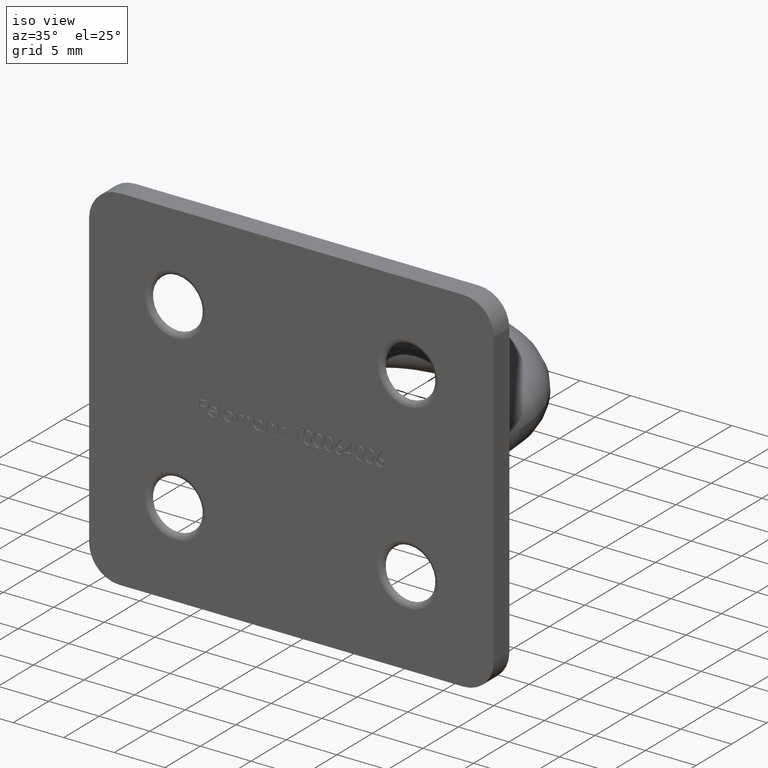
[diagram: clean part render]
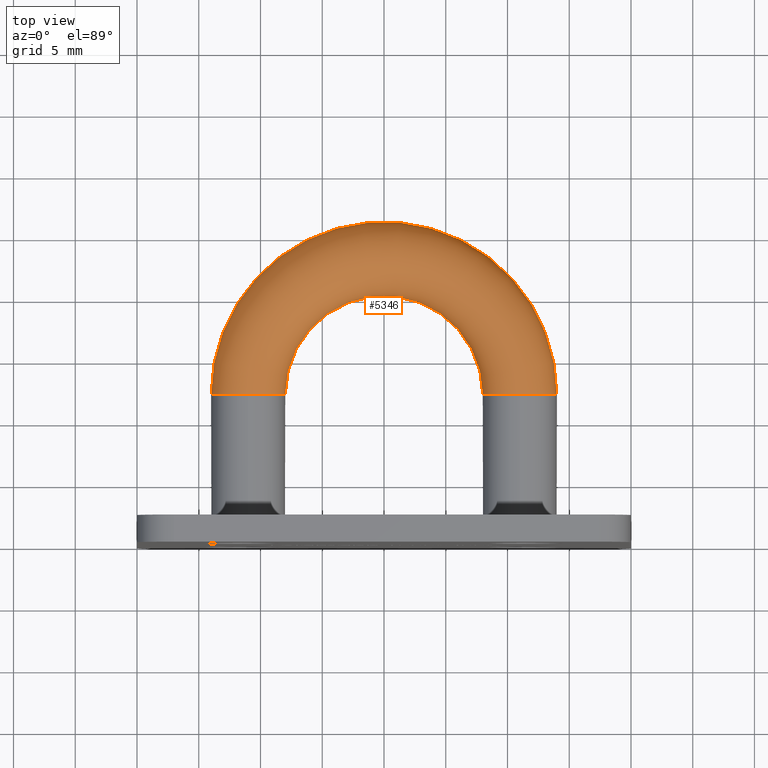
[diagram: tour spotlight — one face highlighted and labeled with its STEP entity id]
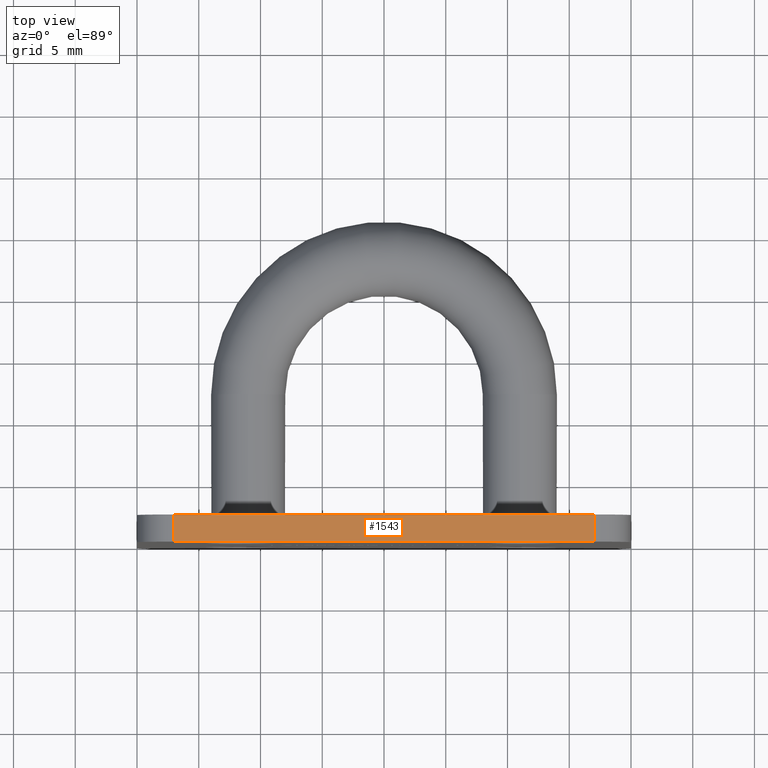
[diagram: tour spotlight — one face highlighted and labeled with its STEP entity id]
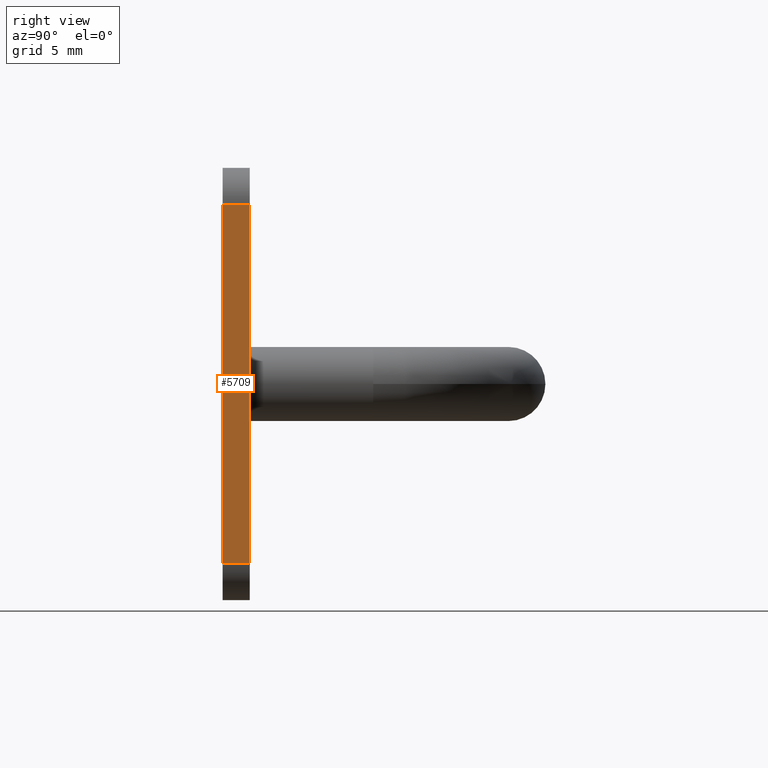
[diagram: tour spotlight — one face highlighted and labeled with its STEP entity id]
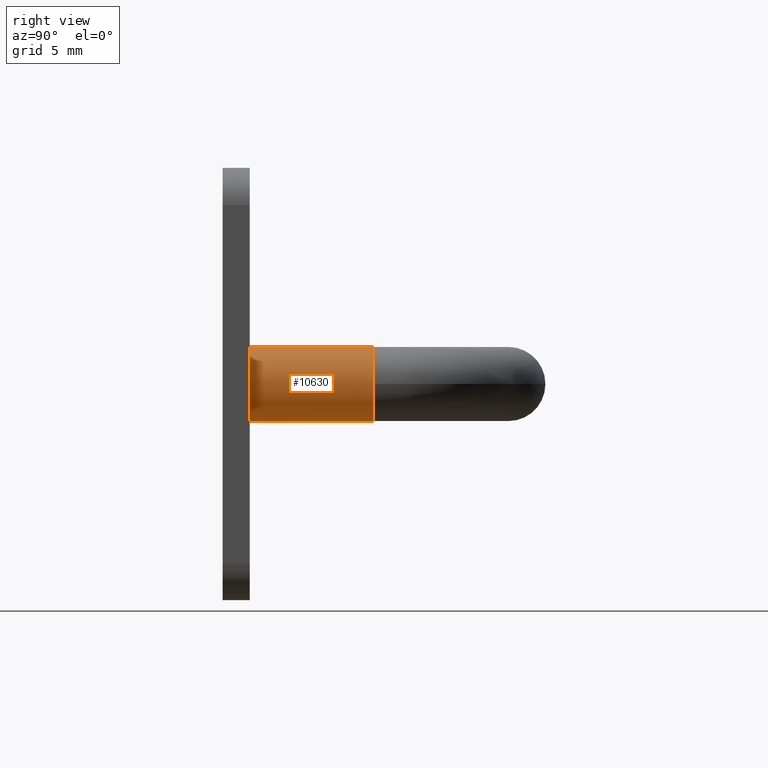
[diagram: tour spotlight — one face highlighted and labeled with its STEP entity id]
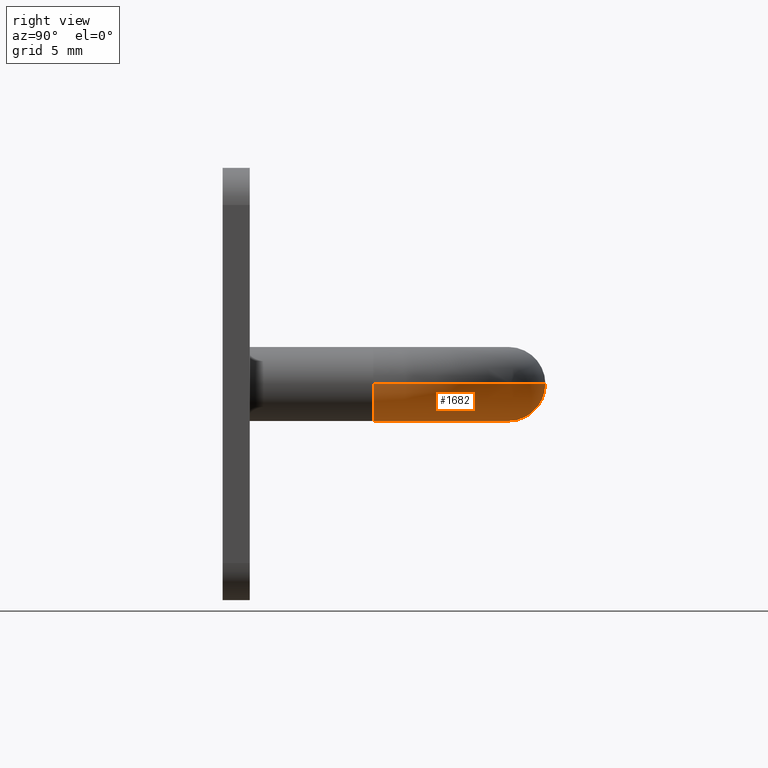
[diagram: tour spotlight — one face highlighted and labeled with its STEP entity id]
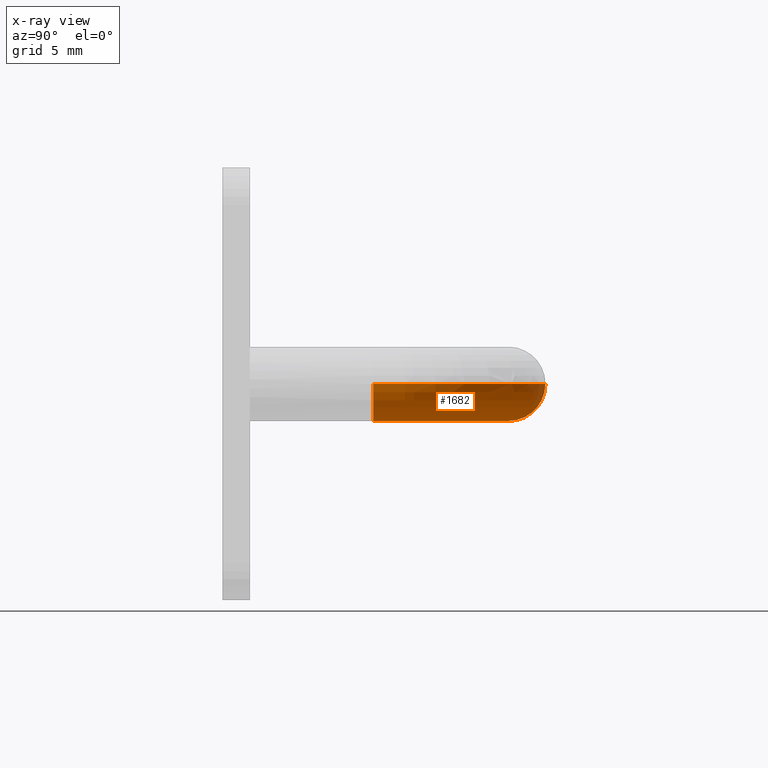
[diagram: x-ray of the same camera — body ghosted, this tour face saturated]
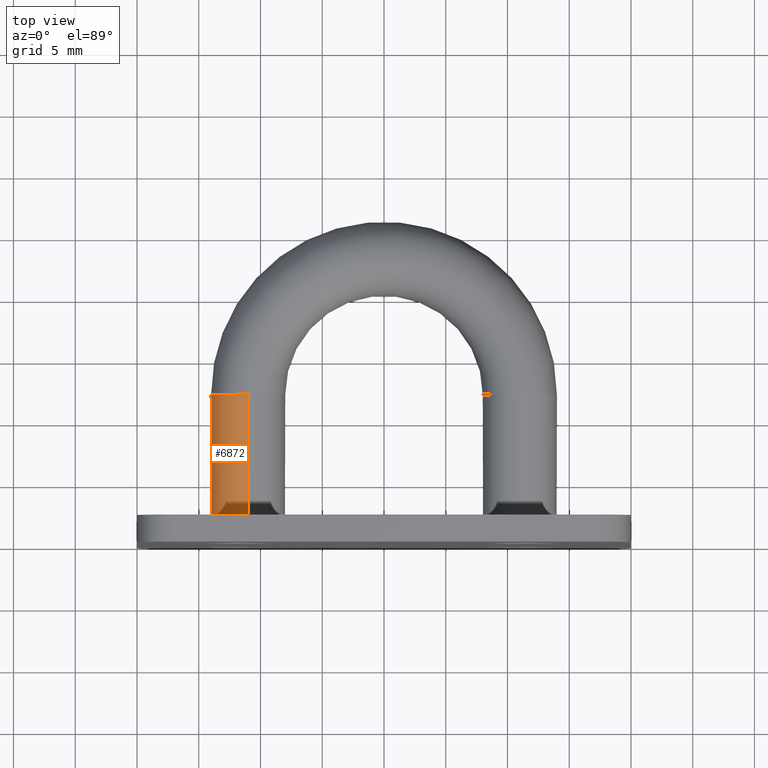
[diagram: tour spotlight — one face highlighted and labeled with its STEP entity id]
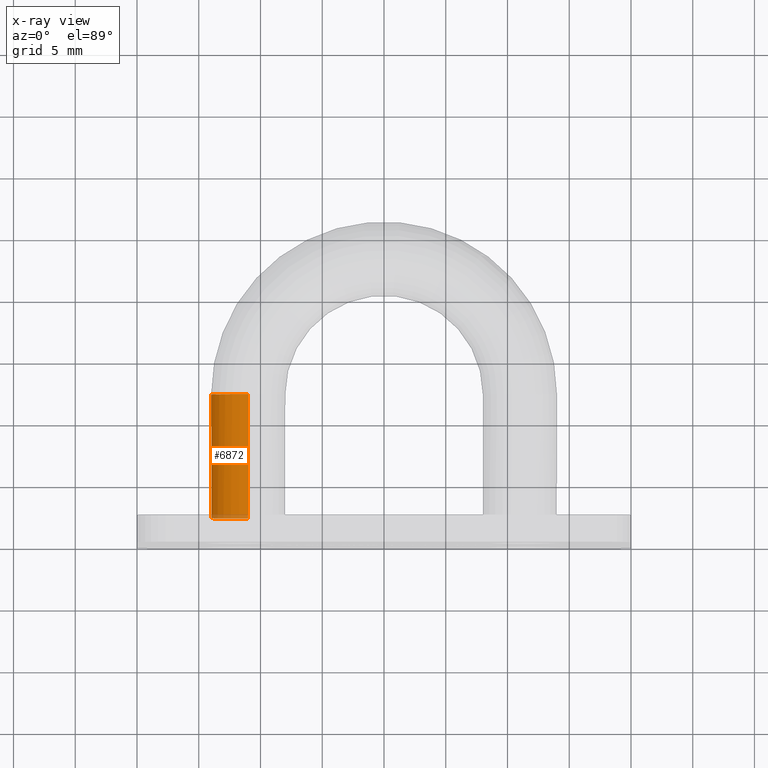
[diagram: x-ray of the same camera — body ghosted, this tour face saturated]
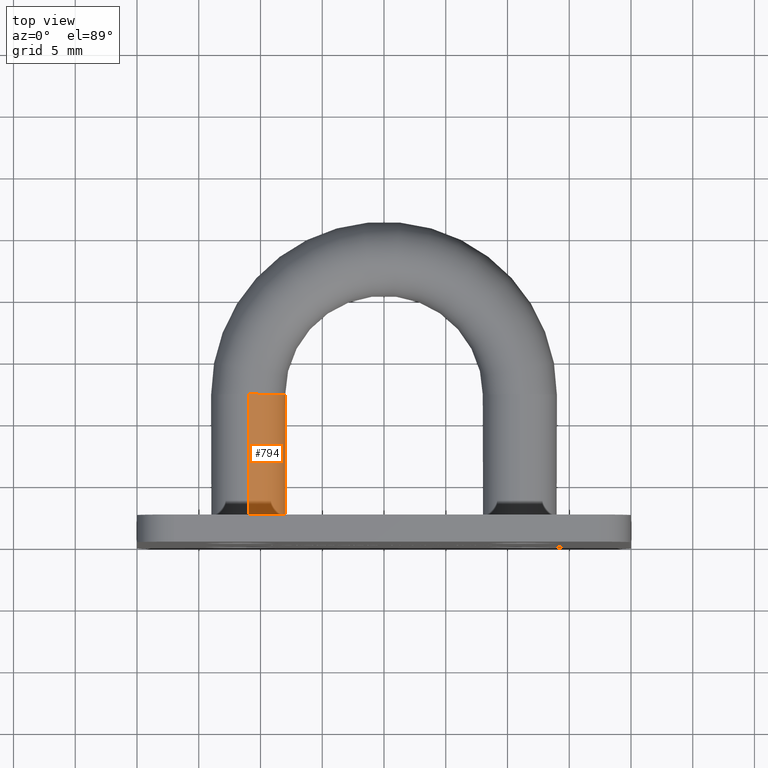
[diagram: tour spotlight — one face highlighted and labeled with its STEP entity id]
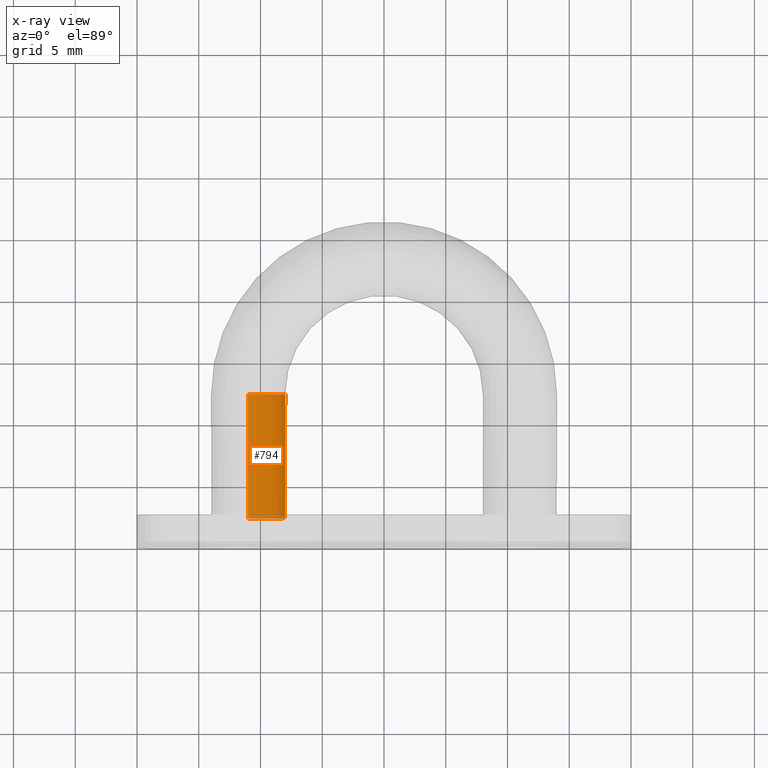
[diagram: x-ray of the same camera — body ghosted, this tour face saturated]
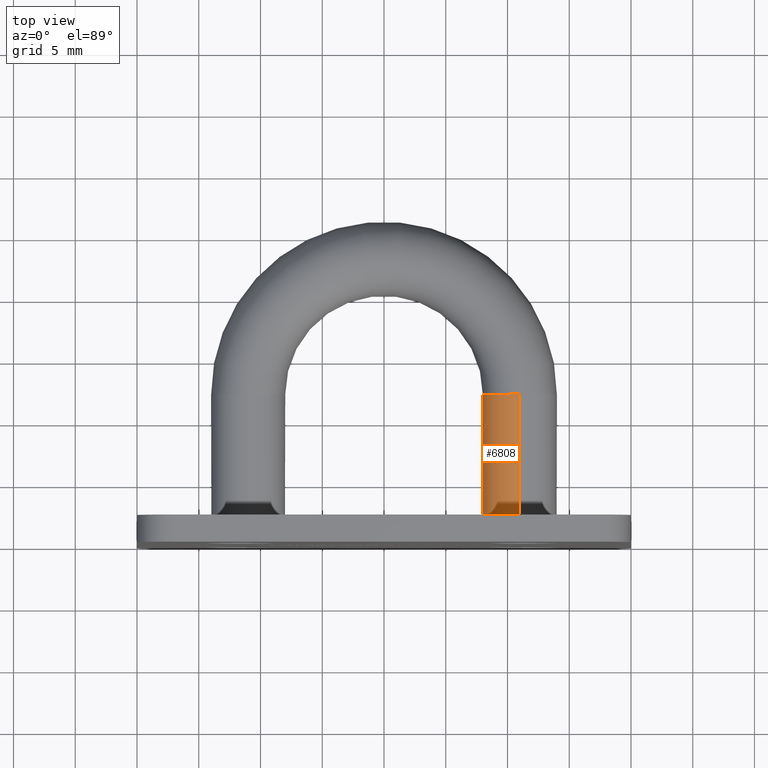
[diagram: tour spotlight — one face highlighted and labeled with its STEP entity id]
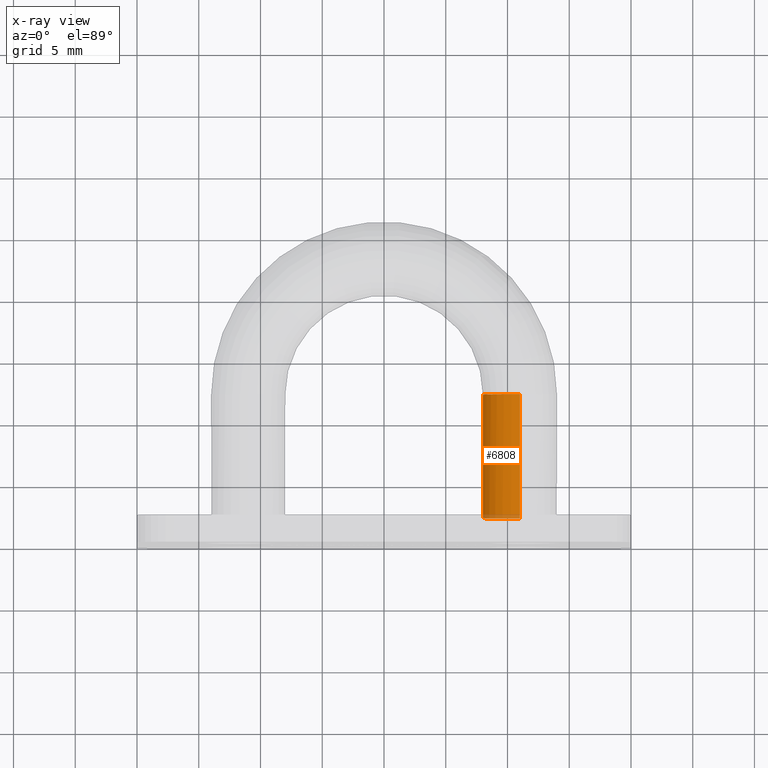
[diagram: x-ray of the same camera — body ghosted, this tour face saturated]
A machine part: a face-by-face anatomy tour. The part has 250 B-rep faces; the first image is the clean iso view, then the 8 largest visible faces are spotlighted one at a time (largest first), each with its STEP entity span.

Face 1 — top view, entity #5346. In plain terms, the highlighted toroidal blend (fillet) surface has major radius 11 mm and minor (blend) radius 3 mm.
Definition (entity closure, byte-faithful):
#213 = DIRECTION ( 'NONE',  ( 0.0000000000000000000, 0.0000000000000000000, -1.000000000000000000 ) ) ;
#235 = DIRECTION ( 'NONE',  ( -0.0000000000000000000, -0.0000000000000000000, -1.000000000000000000 ) ) ;
#316 = VERTEX_POINT ( 'NONE', #789 ) ;
#777 = EDGE_CURVE ( 'NONE', #3674, #10600, #4147, .T. ) ;
#789 = CARTESIAN_POINT ( 'NONE',  ( 8.000000000000000000, 12.20000000000000100, 3.673940397442058900E-016 ) ) ;
#1513 = CIRCLE ( 'NONE', #9219, 8.000000000000000000 ) ;
#2386 = CARTESIAN_POINT ( 'NONE',  ( 0.0000000000000000000, 12.19999999999999900, 0.0000000000000000000 ) ) ;
#2477 = AXIS2_PLACEMENT_3D ( 'NONE', #5826, #12675, #213 ) ;
#3196 = CARTESIAN_POINT ( 'NONE',  ( -8.000000000000000000, 12.19999999999999900, 3.673940397442058900E-016 ) ) ;
#3433 = AXIS2_PLACEMENT_3D ( 'NONE', #8269, #4903, #10597 ) ;
#3674 = VERTEX_POINT ( 'NONE', #4309 ) ;
#3719 = AXIS2_PLACEMENT_3D ( 'NONE', #9414, #6094, #13930 ) ;
#3807 = AXIS2_PLACEMENT_3D ( 'NONE', #5290, #13127, #7544 ) ;
#4134 = ORIENTED_EDGE ( 'NONE', *, *, #12502, .F. ) ;
#4147 = CIRCLE ( 'NONE', #2477, 2.999999999999999100 ) ;
#4193 = CARTESIAN_POINT ( 'NONE',  ( -11.00000000000000000, 12.19999999999999900, 2.999999999999999100 ) ) ;
#4198 = EDGE_CURVE ( 'NONE', #13438, #9780, #13328, .T. ) ;
#4309 = CARTESIAN_POINT ( 'NONE',  ( 11.00000000000000000, 12.20000000000000100, 2.999999999999999100 ) ) ;
#4454 = EDGE_CURVE ( 'NONE', #316, #3674, #7195, .T. ) ;
#4500 = CIRCLE ( 'NONE', #3433, 13.99999999999999800 ) ;
#4553 = AXIS2_PLACEMENT_3D ( 'NONE', #2386, #235, #10197 ) ;
#4710 = VERTEX_POINT ( 'NONE', #7924 ) ;
#4737 = EDGE_LOOP ( 'NONE', ( #10674, #4134, #10866, #7109, #11519, #6777 ) ) ;
#4903 = DIRECTION ( 'NONE',  ( -0.0000000000000000000, -0.0000000000000000000, -1.000000000000000000 ) ) ;
#5290 = CARTESIAN_POINT ( 'NONE',  ( -11.00000000000000000, 12.19999999999999900, 0.0000000000000000000 ) ) ;
#5346 = ADVANCED_FACE ( 'NONE', ( #12786 ), #7871, .T. ) ;
#5704 = CARTESIAN_POINT ( 'NONE',  ( 13.99999999999999800, 12.20000000000000100, 0.0000000000000000000 ) ) ;
#5826 = CARTESIAN_POINT ( 'NONE',  ( 11.00000000000000000, 12.20000000000000100, 0.0000000000000000000 ) ) ;
#6094 = DIRECTION ( 'NONE',  ( -1.224646799147353200E-016, 1.000000000000000000, 0.0000000000000000000 ) ) ;
#6777 = ORIENTED_EDGE ( 'NONE', *, *, #777, .T. ) ;
#7109 = ORIENTED_EDGE ( 'NONE', *, *, #11915, .T. ) ;
#7195 = CIRCLE ( 'NONE', #3719, 2.999999999999999100 ) ;
#7299 = CIRCLE ( 'NONE', #10449, 2.999999999999999100 ) ;
#7544 = DIRECTION ( 'NONE',  ( 0.0000000000000000000, 0.0000000000000000000, -1.000000000000000000 ) ) ;
#7871 = TOROIDAL_SURFACE ( 'NONE', #4553, 11.00000000000000000, 2.999999999999999100 ) ;
#7924 = CARTESIAN_POINT ( 'NONE',  ( -13.99999999999999800, 12.19999999999999900, 0.0000000000000000000 ) ) ;
#8124 = DIRECTION ( 'NONE',  ( 0.0000000000000000000, 0.0000000000000000000, -1.000000000000000000 ) ) ;
#8181 = CARTESIAN_POINT ( 'NONE',  ( -11.00000000000000000, 12.19999999999999900, 0.0000000000000000000 ) ) ;
#8269 = CARTESIAN_POINT ( 'NONE',  ( 0.0000000000000000000, 12.19999999999999900, 0.0000000000000000000 ) ) ;
#8973 = DIRECTION ( 'NONE',  ( -1.000000000000000000, 0.0000000000000000000, 0.0000000000000000000 ) ) ;
#9219 = AXIS2_PLACEMENT_3D ( 'NONE', #12361, #10160, #8973 ) ;
#9414 = CARTESIAN_POINT ( 'NONE',  ( 11.00000000000000000, 12.20000000000000100, 0.0000000000000000000 ) ) ;
#9780 = VERTEX_POINT ( 'NONE', #4193 ) ;
#10160 = DIRECTION ( 'NONE',  ( -0.0000000000000000000, -0.0000000000000000000, -1.000000000000000000 ) ) ;
#10197 = DIRECTION ( 'NONE',  ( -1.000000000000000000, 0.0000000000000000000, 0.0000000000000000000 ) ) ;
#10449 = AXIS2_PLACEMENT_3D ( 'NONE', #8181, #12536, #8124 ) ;
#10597 = DIRECTION ( 'NONE',  ( -1.000000000000000000, 0.0000000000000000000, 0.0000000000000000000 ) ) ;
#10600 = VERTEX_POINT ( 'NONE', #5704 ) ;
#10674 = ORIENTED_EDGE ( 'NONE', *, *, #11633, .F. ) ;
#10866 = ORIENTED_EDGE ( 'NONE', *, *, #4198, .F. ) ;
#11519 = ORIENTED_EDGE ( 'NONE', *, *, #4454, .T. ) ;
#11633 = EDGE_CURVE ( 'NONE', #4710, #10600, #4500, .T. ) ;
#11915 = EDGE_CURVE ( 'NONE', #13438, #316, #1513, .T. ) ;
#12361 = CARTESIAN_POINT ( 'NONE',  ( 0.0000000000000000000, 12.19999999999999900, 3.673940397442058900E-016 ) ) ;
#12502 = EDGE_CURVE ( 'NONE', #9780, #4710, #7299, .T. ) ;
#12536 = DIRECTION ( 'NONE',  ( 0.0000000000000000000, -1.000000000000000000, 0.0000000000000000000 ) ) ;
#12675 = DIRECTION ( 'NONE',  ( -1.224646799147353200E-016, 1.000000000000000000, 0.0000000000000000000 ) ) ;
#12786 = FACE_OUTER_BOUND ( 'NONE', #4737, .T. ) ;
#13127 = DIRECTION ( 'NONE',  ( 0.0000000000000000000, -1.000000000000000000, 0.0000000000000000000 ) ) ;
#13328 = CIRCLE ( 'NONE', #3807, 2.999999999999999100 ) ;
#13438 = VERTEX_POINT ( 'NONE', #3196 ) ;
#13930 = DIRECTION ( 'NONE',  ( 0.0000000000000000000, 0.0000000000000000000, -1.000000000000000000 ) ) ;

Face 2 — top view, entity #1543. In plain terms, the highlighted planar face has unit normal (-0, 0, -1).
Definition (entity closure, byte-faithful):
#126 = FACE_OUTER_BOUND ( 'NONE', #6841, .T. ) ;
#472 = ORIENTED_EDGE ( 'NONE', *, *, #13017, .F. ) ;
#1021 = VECTOR ( 'NONE', #13236, 1000.000000000000000 ) ;
#1067 = AXIS2_PLACEMENT_3D ( 'NONE', #6037, #13885, #7105 ) ;
#1543 = ADVANCED_FACE ( 'NONE', ( #126 ), #2711, .F. ) ;
#1545 = CARTESIAN_POINT ( 'NONE',  ( 16.99999999999999600, 2.200000000000000200, 17.50000000000000000 ) ) ;
#2084 = LINE ( 'NONE', #10923, #1021 ) ;
#2206 = EDGE_CURVE ( 'NONE', #14180, #8780, #6234, .T. ) ;
#2583 = DIRECTION ( 'NONE',  ( -0.0000000000000000000, 1.000000000000000000, -0.0000000000000000000 ) ) ;
#2711 = PLANE ( 'NONE',  #1067 ) ;
#2809 = VERTEX_POINT ( 'NONE', #5242 ) ;
#2855 = DIRECTION ( 'NONE',  ( 1.000000000000000000, -0.0000000000000000000, -8.673617379884036700E-017 ) ) ;
#3677 = VERTEX_POINT ( 'NONE', #10258 ) ;
#4326 = CARTESIAN_POINT ( 'NONE',  ( 19.99999999999999600, 2.200000000000000200, 17.50000000000000000 ) ) ;
#5242 = CARTESIAN_POINT ( 'NONE',  ( -17.00000000000000000, 2.200000000000000200, 17.50000000000000400 ) ) ;
#6037 = CARTESIAN_POINT ( 'NONE',  ( 19.99999999999999600, 2.200000000000000200, 17.50000000000000000 ) ) ;
#6234 = LINE ( 'NONE', #1545, #8671 ) ;
#6841 = EDGE_LOOP ( 'NONE', ( #472, #8459, #11005, #11823 ) ) ;
#7105 = DIRECTION ( 'NONE',  ( -1.000000000000000000, 0.0000000000000000000, 8.673617379884036700E-017 ) ) ;
#8319 = CARTESIAN_POINT ( 'NONE',  ( 19.99999999999999600, 0.0000000000000000000, 17.50000000000000000 ) ) ;
#8459 = ORIENTED_EDGE ( 'NONE', *, *, #9851, .T. ) ;
#8671 = VECTOR ( 'NONE', #2583, 1000.000000000000000 ) ;
#8741 = EDGE_CURVE ( 'NONE', #3677, #14180, #12595, .T. ) ;
#8780 = VERTEX_POINT ( 'NONE', #12790 ) ;
#9851 = EDGE_CURVE ( 'NONE', #2809, #3677, #2084, .T. ) ;
#10258 = CARTESIAN_POINT ( 'NONE',  ( -17.00000000000000000, 0.0000000000000000000, 17.50000000000000400 ) ) ;
#10657 = VECTOR ( 'NONE', #2855, 1000.000000000000000 ) ;
#10752 = VECTOR ( 'NONE', #14385, 1000.000000000000000 ) ;
#10923 = CARTESIAN_POINT ( 'NONE',  ( -17.00000000000000000, 2.200000000000000200, 17.50000000000000400 ) ) ;
#11005 = ORIENTED_EDGE ( 'NONE', *, *, #8741, .T. ) ;
#11108 = CARTESIAN_POINT ( 'NONE',  ( 16.99999999999999600, 0.0000000000000000000, 17.50000000000000000 ) ) ;
#11823 = ORIENTED_EDGE ( 'NONE', *, *, #2206, .T. ) ;
#12595 = LINE ( 'NONE', #8319, #10657 ) ;
#12790 = CARTESIAN_POINT ( 'NONE',  ( 16.99999999999999600, 2.200000000000000200, 17.50000000000000000 ) ) ;
#13017 = EDGE_CURVE ( 'NONE', #2809, #8780, #14474, .T. ) ;
#13236 = DIRECTION ( 'NONE',  ( 0.0000000000000000000, -1.000000000000000000, 0.0000000000000000000 ) ) ;
#13885 = DIRECTION ( 'NONE',  ( -8.673617379884036700E-017, 0.0000000000000000000, -1.000000000000000000 ) ) ;
#14180 = VERTEX_POINT ( 'NONE', #11108 ) ;
#14385 = DIRECTION ( 'NONE',  ( 1.000000000000000000, -0.0000000000000000000, -8.673617379884036700E-017 ) ) ;
#14474 = LINE ( 'NONE', #4326, #10752 ) ;

Face 3 — right view, entity #5709. In plain terms, the highlighted planar face has unit normal (-1, 0, 0).
Definition (entity closure, byte-faithful):
#370 = DIRECTION ( 'NONE',  ( -0.0000000000000000000, 1.000000000000000000, -0.0000000000000000000 ) ) ;
#677 = VECTOR ( 'NONE', #12735, 1000.000000000000000 ) ;
#849 = VERTEX_POINT ( 'NONE', #13469 ) ;
#2041 = LINE ( 'NONE', #4914, #4841 ) ;
#2266 = LINE ( 'NONE', #6802, #677 ) ;
#2376 = EDGE_LOOP ( 'NONE', ( #14519, #5518, #12705, #2771 ) ) ;
#2771 = ORIENTED_EDGE ( 'NONE', *, *, #14309, .T. ) ;
#2931 = CARTESIAN_POINT ( 'NONE',  ( 19.99999999999999600, 2.200000000000000200, -14.50000000000000500 ) ) ;
#3169 = DIRECTION ( 'NONE',  ( 0.0000000000000000000, 0.0000000000000000000, 1.000000000000000000 ) ) ;
#3183 = VERTEX_POINT ( 'NONE', #2931 ) ;
#3949 = DIRECTION ( 'NONE',  ( 0.0000000000000000000, -1.000000000000000000, 0.0000000000000000000 ) ) ;
#4841 = VECTOR ( 'NONE', #370, 1000.000000000000000 ) ;
#4914 = CARTESIAN_POINT ( 'NONE',  ( 19.99999999999999600, 2.200000000000000200, -14.50000000000000500 ) ) ;
#4970 = CARTESIAN_POINT ( 'NONE',  ( 19.99999999999999600, 2.200000000000000200, 14.50000000000000200 ) ) ;
#5295 = AXIS2_PLACEMENT_3D ( 'NONE', #6469, #12151, #3169 ) ;
#5518 = ORIENTED_EDGE ( 'NONE', *, *, #12488, .T. ) ;
#5709 = ADVANCED_FACE ( 'NONE', ( #6458 ), #6514, .F. ) ;
#6458 = FACE_OUTER_BOUND ( 'NONE', #2376, .T. ) ;
#6469 = CARTESIAN_POINT ( 'NONE',  ( 19.99999999999999600, 2.200000000000000200, -17.50000000000000400 ) ) ;
#6514 = PLANE ( 'NONE',  #5295 ) ;
#6704 = EDGE_CURVE ( 'NONE', #13199, #849, #2266, .T. ) ;
#6802 = CARTESIAN_POINT ( 'NONE',  ( 19.99999999999999600, 0.0000000000000000000, -17.50000000000000400 ) ) ;
#6804 = CARTESIAN_POINT ( 'NONE',  ( 19.99999999999999600, 0.0000000000000000000, 14.50000000000000200 ) ) ;
#7755 = EDGE_CURVE ( 'NONE', #9241, #3183, #8363, .T. ) ;
#7999 = VECTOR ( 'NONE', #13369, 1000.000000000000000 ) ;
#8363 = LINE ( 'NONE', #14460, #7999 ) ;
#8653 = VECTOR ( 'NONE', #3949, 1000.000000000000000 ) ;
#9241 = VERTEX_POINT ( 'NONE', #10233 ) ;
#10233 = CARTESIAN_POINT ( 'NONE',  ( 19.99999999999999600, 2.200000000000000200, 14.50000000000000200 ) ) ;
#11285 = LINE ( 'NONE', #4970, #8653 ) ;
#12151 = DIRECTION ( 'NONE',  ( -1.000000000000000000, 0.0000000000000000000, 0.0000000000000000000 ) ) ;
#12488 = EDGE_CURVE ( 'NONE', #849, #3183, #2041, .T. ) ;
#12705 = ORIENTED_EDGE ( 'NONE', *, *, #7755, .F. ) ;
#12735 = DIRECTION ( 'NONE',  ( -0.0000000000000000000, -0.0000000000000000000, -1.000000000000000000 ) ) ;
#13199 = VERTEX_POINT ( 'NONE', #6804 ) ;
#13369 = DIRECTION ( 'NONE',  ( -0.0000000000000000000, -0.0000000000000000000, -1.000000000000000000 ) ) ;
#13469 = CARTESIAN_POINT ( 'NONE',  ( 19.99999999999999600, 0.0000000000000000000, -14.50000000000000500 ) ) ;
#14309 = EDGE_CURVE ( 'NONE', #9241, #13199, #11285, .T. ) ;
#14460 = CARTESIAN_POINT ( 'NONE',  ( 19.99999999999999600, 2.200000000000000200, -17.50000000000000400 ) ) ;
#14519 = ORIENTED_EDGE ( 'NONE', *, *, #6704, .T. ) ;

Face 4 — right view, entity #10630. In plain terms, the highlighted cylindrical surface (partial cylindrical patch) has radius 3 mm, axis along (0, -1, 0).
Definition (entity closure, byte-faithful):
#213 = DIRECTION ( 'NONE',  ( 0.0000000000000000000, 0.0000000000000000000, -1.000000000000000000 ) ) ;
#662 = DIRECTION ( 'NONE',  ( -0.0000000000000000000, 1.000000000000000000, -0.0000000000000000000 ) ) ;
#777 = EDGE_CURVE ( 'NONE', #3674, #10600, #4147, .T. ) ;
#2285 = EDGE_CURVE ( 'NONE', #3448, #12396, #2737, .T. ) ;
#2477 = AXIS2_PLACEMENT_3D ( 'NONE', #5826, #12675, #213 ) ;
#2593 = ORIENTED_EDGE ( 'NONE', *, *, #12695, .T. ) ;
#2737 = LINE ( 'NONE', #9559, #9015 ) ;
#2824 = ORIENTED_EDGE ( 'NONE', *, *, #2285, .F. ) ;
#3142 = ORIENTED_EDGE ( 'NONE', *, *, #777, .F. ) ;
#3448 = VERTEX_POINT ( 'NONE', #3597 ) ;
#3597 = CARTESIAN_POINT ( 'NONE',  ( 11.00000000000000000, 12.20000000000000100, -2.999999999999999100 ) ) ;
#3674 = VERTEX_POINT ( 'NONE', #4309 ) ;
#3892 = ORIENTED_EDGE ( 'NONE', *, *, #13526, .F. ) ;
#3910 = AXIS2_PLACEMENT_3D ( 'NONE', #10943, #12085, #4252 ) ;
#4147 = CIRCLE ( 'NONE', #2477, 2.999999999999999100 ) ;
#4252 = DIRECTION ( 'NONE',  ( 0.0000000000000000000, 0.0000000000000000000, -1.000000000000000000 ) ) ;
#4309 = CARTESIAN_POINT ( 'NONE',  ( 11.00000000000000000, 12.20000000000000100, 2.999999999999999100 ) ) ;
#4350 = CARTESIAN_POINT ( 'NONE',  ( 11.00000000000000000, 2.200000000000000600, 2.999999999999999100 ) ) ;
#4483 = LINE ( 'NONE', #11293, #14487 ) ;
#4550 = AXIS2_PLACEMENT_3D ( 'NONE', #5262, #662, #8486 ) ;
#5262 = CARTESIAN_POINT ( 'NONE',  ( 11.00000000000000000, 2.200000000000000600, 0.0000000000000000000 ) ) ;
#5404 = CIRCLE ( 'NONE', #4550, 2.999999999999999100 ) ;
#5704 = CARTESIAN_POINT ( 'NONE',  ( 13.99999999999999800, 12.20000000000000100, 0.0000000000000000000 ) ) ;
#5826 = CARTESIAN_POINT ( 'NONE',  ( 11.00000000000000000, 12.20000000000000100, 0.0000000000000000000 ) ) ;
#6217 = CIRCLE ( 'NONE', #3910, 2.999999999999999100 ) ;
#6256 = ORIENTED_EDGE ( 'NONE', *, *, #9807, .T. ) ;
#8151 = DIRECTION ( 'NONE',  ( 0.0000000000000000000, -1.000000000000000000, 0.0000000000000000000 ) ) ;
#8332 = EDGE_LOOP ( 'NONE', ( #3142, #2593, #6256, #2824, #3892 ) ) ;
#8486 = DIRECTION ( 'NONE',  ( 0.0000000000000000000, 0.0000000000000000000, -1.000000000000000000 ) ) ;
#8813 = CARTESIAN_POINT ( 'NONE',  ( 11.00000000000000000, 2.200000000000000600, -2.999999999999999100 ) ) ;
#8982 = DIRECTION ( 'NONE',  ( 0.0000000000000000000, -1.000000000000000000, 0.0000000000000000000 ) ) ;
#9015 = VECTOR ( 'NONE', #12954, 1000.000000000000000 ) ;
#9163 = DIRECTION ( 'NONE',  ( 0.0000000000000000000, 0.0000000000000000000, -1.000000000000000000 ) ) ;
#9559 = CARTESIAN_POINT ( 'NONE',  ( 11.00000000000000000, 12.20000000000000100, -2.999999999999999100 ) ) ;
#9807 = EDGE_CURVE ( 'NONE', #10517, #12396, #5404, .T. ) ;
#10469 = CYLINDRICAL_SURFACE ( 'NONE', #13944, 2.999999999999999100 ) ;
#10517 = VERTEX_POINT ( 'NONE', #4350 ) ;
#10600 = VERTEX_POINT ( 'NONE', #5704 ) ;
#10630 = ADVANCED_FACE ( 'NONE', ( #10807 ), #10469, .T. ) ;
#10807 = FACE_OUTER_BOUND ( 'NONE', #8332, .T. ) ;
#10943 = CARTESIAN_POINT ( 'NONE',  ( 11.00000000000000000, 12.20000000000000100, 0.0000000000000000000 ) ) ;
#11293 = CARTESIAN_POINT ( 'NONE',  ( 11.00000000000000000, 12.20000000000000100, 2.999999999999999100 ) ) ;
#12085 = DIRECTION ( 'NONE',  ( -1.224646799147353200E-016, 1.000000000000000000, 0.0000000000000000000 ) ) ;
#12396 = VERTEX_POINT ( 'NONE', #8813 ) ;
#12503 = CARTESIAN_POINT ( 'NONE',  ( 11.00000000000000000, 12.20000000000000100, 0.0000000000000000000 ) ) ;
#12675 = DIRECTION ( 'NONE',  ( -1.224646799147353200E-016, 1.000000000000000000, 0.0000000000000000000 ) ) ;
#12695 = EDGE_CURVE ( 'NONE', #3674, #10517, #4483, .T. ) ;
#12954 = DIRECTION ( 'NONE',  ( 0.0000000000000000000, -1.000000000000000000, 0.0000000000000000000 ) ) ;
#13526 = EDGE_CURVE ( 'NONE', #10600, #3448, #6217, .T. ) ;
#13944 = AXIS2_PLACEMENT_3D ( 'NONE', #12503, #8151, #9163 ) ;
#14487 = VECTOR ( 'NONE', #8982, 1000.000000000000000 ) ;

Face 5 — right view, entity #1682. An x-ray twin of the same camera follows (body ghosted, this face saturated) — the face is partly hidden behind the body. In plain terms, the highlighted toroidal blend (fillet) surface has major radius 11 mm and minor (blend) radius 3 mm.
Definition (entity closure, byte-faithful):
#159 = DIRECTION ( 'NONE',  ( -1.224646799147353200E-016, 1.000000000000000000, 0.0000000000000000000 ) ) ;
#316 = VERTEX_POINT ( 'NONE', #789 ) ;
#322 = CIRCLE ( 'NONE', #8951, 2.999999999999999100 ) ;
#629 = TOROIDAL_SURFACE ( 'NONE', #8838, 11.00000000000000000, 2.999999999999999100 ) ;
#789 = CARTESIAN_POINT ( 'NONE',  ( 8.000000000000000000, 12.20000000000000100, 3.673940397442058900E-016 ) ) ;
#1513 = CIRCLE ( 'NONE', #9219, 8.000000000000000000 ) ;
#1682 = ADVANCED_FACE ( 'NONE', ( #10427 ), #629, .T. ) ;
#1696 = DIRECTION ( 'NONE',  ( 0.0000000000000000000, 0.0000000000000000000, -1.000000000000000000 ) ) ;
#2926 = ORIENTED_EDGE ( 'NONE', *, *, #11301, .F. ) ;
#3196 = CARTESIAN_POINT ( 'NONE',  ( -8.000000000000000000, 12.19999999999999900, 3.673940397442058900E-016 ) ) ;
#3202 = EDGE_LOOP ( 'NONE', ( #5617, #5726, #5422, #7030, #14435, #2926 ) ) ;
#3430 = CARTESIAN_POINT ( 'NONE',  ( 11.00000000000000000, 12.20000000000000100, 0.0000000000000000000 ) ) ;
#3433 = AXIS2_PLACEMENT_3D ( 'NONE', #8269, #4903, #10597 ) ;
#3448 = VERTEX_POINT ( 'NONE', #3597 ) ;
#3597 = CARTESIAN_POINT ( 'NONE',  ( 11.00000000000000000, 12.20000000000000100, -2.999999999999999100 ) ) ;
#3910 = AXIS2_PLACEMENT_3D ( 'NONE', #10943, #12085, #4252 ) ;
#4252 = DIRECTION ( 'NONE',  ( 0.0000000000000000000, 0.0000000000000000000, -1.000000000000000000 ) ) ;
#4500 = CIRCLE ( 'NONE', #3433, 13.99999999999999800 ) ;
#4707 = DIRECTION ( 'NONE',  ( -0.0000000000000000000, -0.0000000000000000000, -1.000000000000000000 ) ) ;
#4710 = VERTEX_POINT ( 'NONE', #7924 ) ;
#4823 = AXIS2_PLACEMENT_3D ( 'NONE', #3430, #159, #6790 ) ;
#4851 = AXIS2_PLACEMENT_3D ( 'NONE', #12911, #10644, #1696 ) ;
#4903 = DIRECTION ( 'NONE',  ( -0.0000000000000000000, -0.0000000000000000000, -1.000000000000000000 ) ) ;
#5422 = ORIENTED_EDGE ( 'NONE', *, *, #13526, .T. ) ;
#5617 = ORIENTED_EDGE ( 'NONE', *, *, #12957, .F. ) ;
#5704 = CARTESIAN_POINT ( 'NONE',  ( 13.99999999999999800, 12.20000000000000100, 0.0000000000000000000 ) ) ;
#5726 = ORIENTED_EDGE ( 'NONE', *, *, #11633, .T. ) ;
#5763 = DIRECTION ( 'NONE',  ( 0.0000000000000000000, -1.000000000000000000, 0.0000000000000000000 ) ) ;
#6217 = CIRCLE ( 'NONE', #3910, 2.999999999999999100 ) ;
#6790 = DIRECTION ( 'NONE',  ( 0.0000000000000000000, 0.0000000000000000000, -1.000000000000000000 ) ) ;
#7030 = ORIENTED_EDGE ( 'NONE', *, *, #8939, .T. ) ;
#7924 = CARTESIAN_POINT ( 'NONE',  ( -13.99999999999999800, 12.19999999999999900, 0.0000000000000000000 ) ) ;
#8269 = CARTESIAN_POINT ( 'NONE',  ( 0.0000000000000000000, 12.19999999999999900, 0.0000000000000000000 ) ) ;
#8838 = AXIS2_PLACEMENT_3D ( 'NONE', #12674, #4707, #12523 ) ;
#8939 = EDGE_CURVE ( 'NONE', #3448, #316, #11542, .T. ) ;
#8951 = AXIS2_PLACEMENT_3D ( 'NONE', #9077, #5763, #13584 ) ;
#8973 = DIRECTION ( 'NONE',  ( -1.000000000000000000, 0.0000000000000000000, 0.0000000000000000000 ) ) ;
#9077 = CARTESIAN_POINT ( 'NONE',  ( -11.00000000000000000, 12.19999999999999900, 0.0000000000000000000 ) ) ;
#9083 = VERTEX_POINT ( 'NONE', #9571 ) ;
#9219 = AXIS2_PLACEMENT_3D ( 'NONE', #12361, #10160, #8973 ) ;
#9571 = CARTESIAN_POINT ( 'NONE',  ( -11.00000000000000000, 12.19999999999999900, -2.999999999999999100 ) ) ;
#10160 = DIRECTION ( 'NONE',  ( -0.0000000000000000000, -0.0000000000000000000, -1.000000000000000000 ) ) ;
#10427 = FACE_OUTER_BOUND ( 'NONE', #3202, .T. ) ;
#10597 = DIRECTION ( 'NONE',  ( -1.000000000000000000, 0.0000000000000000000, 0.0000000000000000000 ) ) ;
#10600 = VERTEX_POINT ( 'NONE', #5704 ) ;
#10644 = DIRECTION ( 'NONE',  ( 0.0000000000000000000, -1.000000000000000000, 0.0000000000000000000 ) ) ;
#10943 = CARTESIAN_POINT ( 'NONE',  ( 11.00000000000000000, 12.20000000000000100, 0.0000000000000000000 ) ) ;
#11301 = EDGE_CURVE ( 'NONE', #9083, #13438, #322, .T. ) ;
#11542 = CIRCLE ( 'NONE', #4823, 2.999999999999999100 ) ;
#11633 = EDGE_CURVE ( 'NONE', #4710, #10600, #4500, .T. ) ;
#11915 = EDGE_CURVE ( 'NONE', #13438, #316, #1513, .T. ) ;
#12085 = DIRECTION ( 'NONE',  ( -1.224646799147353200E-016, 1.000000000000000000, 0.0000000000000000000 ) ) ;
#12361 = CARTESIAN_POINT ( 'NONE',  ( 0.0000000000000000000, 12.19999999999999900, 3.673940397442058900E-016 ) ) ;
#12523 = DIRECTION ( 'NONE',  ( -1.000000000000000000, 0.0000000000000000000, 0.0000000000000000000 ) ) ;
#12674 = CARTESIAN_POINT ( 'NONE',  ( 0.0000000000000000000, 12.19999999999999900, 0.0000000000000000000 ) ) ;
#12911 = CARTESIAN_POINT ( 'NONE',  ( -11.00000000000000000, 12.19999999999999900, 0.0000000000000000000 ) ) ;
#12957 = EDGE_CURVE ( 'NONE', #4710, #9083, #13757, .T. ) ;
#13438 = VERTEX_POINT ( 'NONE', #3196 ) ;
#13526 = EDGE_CURVE ( 'NONE', #10600, #3448, #6217, .T. ) ;
#13584 = DIRECTION ( 'NONE',  ( 0.0000000000000000000, 0.0000000000000000000, -1.000000000000000000 ) ) ;
#13757 = CIRCLE ( 'NONE', #4851, 2.999999999999999100 ) ;
#14435 = ORIENTED_EDGE ( 'NONE', *, *, #11915, .F. ) ;

Face 6 — top view, entity #6872. An x-ray twin of the same camera follows (body ghosted, this face saturated) — the face is partly hidden behind the body. In plain terms, the highlighted cylindrical surface (partial cylindrical patch) has radius 3 mm, axis along (-0, -1, -0).
Definition (entity closure, byte-faithful):
#1362 = FACE_OUTER_BOUND ( 'NONE', #12163, .T. ) ;
#1549 = VECTOR ( 'NONE', #5748, 1000.000000000000000 ) ;
#1623 = AXIS2_PLACEMENT_3D ( 'NONE', #12845, #8338, #2717 ) ;
#1696 = DIRECTION ( 'NONE',  ( 0.0000000000000000000, 0.0000000000000000000, -1.000000000000000000 ) ) ;
#1832 = VERTEX_POINT ( 'NONE', #10787 ) ;
#2109 = AXIS2_PLACEMENT_3D ( 'NONE', #13762, #3783, #10661 ) ;
#2717 = DIRECTION ( 'NONE',  ( 0.0000000000000000000, 0.0000000000000000000, -1.000000000000000000 ) ) ;
#3783 = DIRECTION ( 'NONE',  ( -0.0000000000000000000, -1.000000000000000000, -0.0000000000000000000 ) ) ;
#3929 = ORIENTED_EDGE ( 'NONE', *, *, #6336, .F. ) ;
#4116 = VERTEX_POINT ( 'NONE', #10523 ) ;
#4179 = CIRCLE ( 'NONE', #1623, 2.999999999999999100 ) ;
#4193 = CARTESIAN_POINT ( 'NONE',  ( -11.00000000000000000, 12.19999999999999900, 2.999999999999999100 ) ) ;
#4710 = VERTEX_POINT ( 'NONE', #7924 ) ;
#4851 = AXIS2_PLACEMENT_3D ( 'NONE', #12911, #10644, #1696 ) ;
#5748 = DIRECTION ( 'NONE',  ( -0.0000000000000000000, -1.000000000000000000, -0.0000000000000000000 ) ) ;
#6243 = EDGE_CURVE ( 'NONE', #9083, #1832, #8718, .T. ) ;
#6336 = EDGE_CURVE ( 'NONE', #4116, #1832, #4179, .T. ) ;
#6615 = VECTOR ( 'NONE', #14367, 1000.000000000000000 ) ;
#6872 = ADVANCED_FACE ( 'NONE', ( #1362 ), #10289, .T. ) ;
#6969 = CARTESIAN_POINT ( 'NONE',  ( -11.00000000000000000, 12.19999999999999900, -2.999999999999999100 ) ) ;
#7299 = CIRCLE ( 'NONE', #10449, 2.999999999999999100 ) ;
#7689 = CARTESIAN_POINT ( 'NONE',  ( -11.00000000000000000, 12.19999999999999900, 2.999999999999999100 ) ) ;
#7924 = CARTESIAN_POINT ( 'NONE',  ( -13.99999999999999800, 12.19999999999999900, 0.0000000000000000000 ) ) ;
#8124 = DIRECTION ( 'NONE',  ( 0.0000000000000000000, 0.0000000000000000000, -1.000000000000000000 ) ) ;
#8181 = CARTESIAN_POINT ( 'NONE',  ( -11.00000000000000000, 12.19999999999999900, 0.0000000000000000000 ) ) ;
#8196 = ORIENTED_EDGE ( 'NONE', *, *, #9405, .F. ) ;
#8338 = DIRECTION ( 'NONE',  ( 0.0000000000000000000, -1.000000000000000000, 0.0000000000000000000 ) ) ;
#8718 = LINE ( 'NONE', #6969, #1549 ) ;
#8824 = ORIENTED_EDGE ( 'NONE', *, *, #6243, .T. ) ;
#9083 = VERTEX_POINT ( 'NONE', #9571 ) ;
#9405 = EDGE_CURVE ( 'NONE', #9780, #4116, #12938, .T. ) ;
#9571 = CARTESIAN_POINT ( 'NONE',  ( -11.00000000000000000, 12.19999999999999900, -2.999999999999999100 ) ) ;
#9610 = ORIENTED_EDGE ( 'NONE', *, *, #12502, .T. ) ;
#9780 = VERTEX_POINT ( 'NONE', #4193 ) ;
#10289 = CYLINDRICAL_SURFACE ( 'NONE', #2109, 2.999999999999999100 ) ;
#10449 = AXIS2_PLACEMENT_3D ( 'NONE', #8181, #12536, #8124 ) ;
#10523 = CARTESIAN_POINT ( 'NONE',  ( -11.00000000000000000, 2.200000000000000600, 2.999999999999999100 ) ) ;
#10644 = DIRECTION ( 'NONE',  ( 0.0000000000000000000, -1.000000000000000000, 0.0000000000000000000 ) ) ;
#10661 = DIRECTION ( 'NONE',  ( 0.0000000000000000000, 0.0000000000000000000, -1.000000000000000000 ) ) ;
#10787 = CARTESIAN_POINT ( 'NONE',  ( -11.00000000000000000, 2.200000000000000600, -2.999999999999999100 ) ) ;
#11325 = ORIENTED_EDGE ( 'NONE', *, *, #12957, .T. ) ;
#12163 = EDGE_LOOP ( 'NONE', ( #8196, #9610, #11325, #8824, #3929 ) ) ;
#12502 = EDGE_CURVE ( 'NONE', #9780, #4710, #7299, .T. ) ;
#12536 = DIRECTION ( 'NONE',  ( 0.0000000000000000000, -1.000000000000000000, 0.0000000000000000000 ) ) ;
#12845 = CARTESIAN_POINT ( 'NONE',  ( -11.00000000000000000, 2.200000000000000600, 0.0000000000000000000 ) ) ;
#12911 = CARTESIAN_POINT ( 'NONE',  ( -11.00000000000000000, 12.19999999999999900, 0.0000000000000000000 ) ) ;
#12938 = LINE ( 'NONE', #7689, #6615 ) ;
#12957 = EDGE_CURVE ( 'NONE', #4710, #9083, #13757, .T. ) ;
#13757 = CIRCLE ( 'NONE', #4851, 2.999999999999999100 ) ;
#13762 = CARTESIAN_POINT ( 'NONE',  ( -11.00000000000000000, 12.19999999999999900, 0.0000000000000000000 ) ) ;
#14367 = DIRECTION ( 'NONE',  ( -0.0000000000000000000, -1.000000000000000000, -0.0000000000000000000 ) ) ;

Face 7 — top view, entity #794. An x-ray twin of the same camera follows (body ghosted, this face saturated) — the face is partly hidden behind the body. In plain terms, the highlighted cylindrical surface (partial cylindrical patch) has radius 3 mm, axis along (-0, -1, -0).
Definition (entity closure, byte-faithful):
#322 = CIRCLE ( 'NONE', #8951, 2.999999999999999100 ) ;
#794 = ADVANCED_FACE ( 'NONE', ( #14153 ), #3451, .T. ) ;
#1042 = CIRCLE ( 'NONE', #13543, 2.999999999999999100 ) ;
#1549 = VECTOR ( 'NONE', #5748, 1000.000000000000000 ) ;
#1832 = VERTEX_POINT ( 'NONE', #10787 ) ;
#2770 = DIRECTION ( 'NONE',  ( 0.0000000000000000000, 0.0000000000000000000, -1.000000000000000000 ) ) ;
#3196 = CARTESIAN_POINT ( 'NONE',  ( -8.000000000000000000, 12.19999999999999900, 3.673940397442058900E-016 ) ) ;
#3225 = AXIS2_PLACEMENT_3D ( 'NONE', #8712, #10904, #10960 ) ;
#3451 = CYLINDRICAL_SURFACE ( 'NONE', #3225, 2.999999999999999100 ) ;
#3452 = ORIENTED_EDGE ( 'NONE', *, *, #6243, .F. ) ;
#3686 = ORIENTED_EDGE ( 'NONE', *, *, #11301, .T. ) ;
#3807 = AXIS2_PLACEMENT_3D ( 'NONE', #5290, #13127, #7544 ) ;
#4116 = VERTEX_POINT ( 'NONE', #10523 ) ;
#4193 = CARTESIAN_POINT ( 'NONE',  ( -11.00000000000000000, 12.19999999999999900, 2.999999999999999100 ) ) ;
#4198 = EDGE_CURVE ( 'NONE', #13438, #9780, #13328, .T. ) ;
#4538 = EDGE_LOOP ( 'NONE', ( #3686, #5236, #9228, #7489, #3452 ) ) ;
#5236 = ORIENTED_EDGE ( 'NONE', *, *, #4198, .T. ) ;
#5290 = CARTESIAN_POINT ( 'NONE',  ( -11.00000000000000000, 12.19999999999999900, 0.0000000000000000000 ) ) ;
#5748 = DIRECTION ( 'NONE',  ( -0.0000000000000000000, -1.000000000000000000, -0.0000000000000000000 ) ) ;
#5763 = DIRECTION ( 'NONE',  ( 0.0000000000000000000, -1.000000000000000000, 0.0000000000000000000 ) ) ;
#6001 = DIRECTION ( 'NONE',  ( 0.0000000000000000000, -1.000000000000000000, 0.0000000000000000000 ) ) ;
#6243 = EDGE_CURVE ( 'NONE', #9083, #1832, #8718, .T. ) ;
#6615 = VECTOR ( 'NONE', #14367, 1000.000000000000000 ) ;
#6969 = CARTESIAN_POINT ( 'NONE',  ( -11.00000000000000000, 12.19999999999999900, -2.999999999999999100 ) ) ;
#7489 = ORIENTED_EDGE ( 'NONE', *, *, #8273, .F. ) ;
#7544 = DIRECTION ( 'NONE',  ( 0.0000000000000000000, 0.0000000000000000000, -1.000000000000000000 ) ) ;
#7689 = CARTESIAN_POINT ( 'NONE',  ( -11.00000000000000000, 12.19999999999999900, 2.999999999999999100 ) ) ;
#8193 = CARTESIAN_POINT ( 'NONE',  ( -11.00000000000000000, 2.200000000000000600, 0.0000000000000000000 ) ) ;
#8273 = EDGE_CURVE ( 'NONE', #1832, #4116, #1042, .T. ) ;
#8712 = CARTESIAN_POINT ( 'NONE',  ( -11.00000000000000000, 12.19999999999999900, 0.0000000000000000000 ) ) ;
#8718 = LINE ( 'NONE', #6969, #1549 ) ;
#8951 = AXIS2_PLACEMENT_3D ( 'NONE', #9077, #5763, #13584 ) ;
#9077 = CARTESIAN_POINT ( 'NONE',  ( -11.00000000000000000, 12.19999999999999900, 0.0000000000000000000 ) ) ;
#9083 = VERTEX_POINT ( 'NONE', #9571 ) ;
#9228 = ORIENTED_EDGE ( 'NONE', *, *, #9405, .T. ) ;
#9405 = EDGE_CURVE ( 'NONE', #9780, #4116, #12938, .T. ) ;
#9571 = CARTESIAN_POINT ( 'NONE',  ( -11.00000000000000000, 12.19999999999999900, -2.999999999999999100 ) ) ;
#9780 = VERTEX_POINT ( 'NONE', #4193 ) ;
#10523 = CARTESIAN_POINT ( 'NONE',  ( -11.00000000000000000, 2.200000000000000600, 2.999999999999999100 ) ) ;
#10787 = CARTESIAN_POINT ( 'NONE',  ( -11.00000000000000000, 2.200000000000000600, -2.999999999999999100 ) ) ;
#10904 = DIRECTION ( 'NONE',  ( -0.0000000000000000000, -1.000000000000000000, -0.0000000000000000000 ) ) ;
#10960 = DIRECTION ( 'NONE',  ( 0.0000000000000000000, 0.0000000000000000000, -1.000000000000000000 ) ) ;
#11301 = EDGE_CURVE ( 'NONE', #9083, #13438, #322, .T. ) ;
#12938 = LINE ( 'NONE', #7689, #6615 ) ;
#13127 = DIRECTION ( 'NONE',  ( 0.0000000000000000000, -1.000000000000000000, 0.0000000000000000000 ) ) ;
#13328 = CIRCLE ( 'NONE', #3807, 2.999999999999999100 ) ;
#13438 = VERTEX_POINT ( 'NONE', #3196 ) ;
#13543 = AXIS2_PLACEMENT_3D ( 'NONE', #8193, #6001, #2770 ) ;
#13584 = DIRECTION ( 'NONE',  ( 0.0000000000000000000, 0.0000000000000000000, -1.000000000000000000 ) ) ;
#14153 = FACE_OUTER_BOUND ( 'NONE', #4538, .T. ) ;
#14367 = DIRECTION ( 'NONE',  ( -0.0000000000000000000, -1.000000000000000000, -0.0000000000000000000 ) ) ;

Face 8 — top view, entity #6808. An x-ray twin of the same camera follows (body ghosted, this face saturated) — the face is partly hidden behind the body. In plain terms, the highlighted cylindrical surface (partial cylindrical patch) has radius 3 mm, axis along (0, -1, 0).
Definition (entity closure, byte-faithful):
#159 = DIRECTION ( 'NONE',  ( -1.224646799147353200E-016, 1.000000000000000000, 0.0000000000000000000 ) ) ;
#209 = EDGE_LOOP ( 'NONE', ( #3365, #2956, #13566, #6429, #7472 ) ) ;
#316 = VERTEX_POINT ( 'NONE', #789 ) ;
#789 = CARTESIAN_POINT ( 'NONE',  ( 8.000000000000000000, 12.20000000000000100, 3.673940397442058900E-016 ) ) ;
#1517 = DIRECTION ( 'NONE',  ( 0.0000000000000000000, 0.0000000000000000000, -1.000000000000000000 ) ) ;
#2285 = EDGE_CURVE ( 'NONE', #3448, #12396, #2737, .T. ) ;
#2484 = DIRECTION ( 'NONE',  ( -0.0000000000000000000, 1.000000000000000000, -0.0000000000000000000 ) ) ;
#2737 = LINE ( 'NONE', #9559, #9015 ) ;
#2956 = ORIENTED_EDGE ( 'NONE', *, *, #4454, .F. ) ;
#3304 = FACE_OUTER_BOUND ( 'NONE', #209, .T. ) ;
#3365 = ORIENTED_EDGE ( 'NONE', *, *, #12695, .F. ) ;
#3430 = CARTESIAN_POINT ( 'NONE',  ( 11.00000000000000000, 12.20000000000000100, 0.0000000000000000000 ) ) ;
#3448 = VERTEX_POINT ( 'NONE', #3597 ) ;
#3597 = CARTESIAN_POINT ( 'NONE',  ( 11.00000000000000000, 12.20000000000000100, -2.999999999999999100 ) ) ;
#3674 = VERTEX_POINT ( 'NONE', #4309 ) ;
#3719 = AXIS2_PLACEMENT_3D ( 'NONE', #9414, #6094, #13930 ) ;
#4309 = CARTESIAN_POINT ( 'NONE',  ( 11.00000000000000000, 12.20000000000000100, 2.999999999999999100 ) ) ;
#4350 = CARTESIAN_POINT ( 'NONE',  ( 11.00000000000000000, 2.200000000000000600, 2.999999999999999100 ) ) ;
#4454 = EDGE_CURVE ( 'NONE', #316, #3674, #7195, .T. ) ;
#4483 = LINE ( 'NONE', #11293, #14487 ) ;
#4823 = AXIS2_PLACEMENT_3D ( 'NONE', #3430, #159, #6790 ) ;
#6094 = DIRECTION ( 'NONE',  ( -1.224646799147353200E-016, 1.000000000000000000, 0.0000000000000000000 ) ) ;
#6302 = EDGE_CURVE ( 'NONE', #12396, #10517, #6623, .T. ) ;
#6429 = ORIENTED_EDGE ( 'NONE', *, *, #2285, .T. ) ;
#6623 = CIRCLE ( 'NONE', #8383, 2.999999999999999100 ) ;
#6790 = DIRECTION ( 'NONE',  ( 0.0000000000000000000, 0.0000000000000000000, -1.000000000000000000 ) ) ;
#6808 = ADVANCED_FACE ( 'NONE', ( #3304 ), #11867, .T. ) ;
#7049 = DIRECTION ( 'NONE',  ( 0.0000000000000000000, -1.000000000000000000, 0.0000000000000000000 ) ) ;
#7195 = CIRCLE ( 'NONE', #3719, 2.999999999999999100 ) ;
#7472 = ORIENTED_EDGE ( 'NONE', *, *, #6302, .T. ) ;
#8097 = CARTESIAN_POINT ( 'NONE',  ( 11.00000000000000000, 2.200000000000000600, 0.0000000000000000000 ) ) ;
#8383 = AXIS2_PLACEMENT_3D ( 'NONE', #8097, #2484, #11461 ) ;
#8813 = CARTESIAN_POINT ( 'NONE',  ( 11.00000000000000000, 2.200000000000000600, -2.999999999999999100 ) ) ;
#8939 = EDGE_CURVE ( 'NONE', #3448, #316, #11542, .T. ) ;
#8982 = DIRECTION ( 'NONE',  ( 0.0000000000000000000, -1.000000000000000000, 0.0000000000000000000 ) ) ;
#9015 = VECTOR ( 'NONE', #12954, 1000.000000000000000 ) ;
#9414 = CARTESIAN_POINT ( 'NONE',  ( 11.00000000000000000, 12.20000000000000100, 0.0000000000000000000 ) ) ;
#9559 = CARTESIAN_POINT ( 'NONE',  ( 11.00000000000000000, 12.20000000000000100, -2.999999999999999100 ) ) ;
#10517 = VERTEX_POINT ( 'NONE', #4350 ) ;
#11293 = CARTESIAN_POINT ( 'NONE',  ( 11.00000000000000000, 12.20000000000000100, 2.999999999999999100 ) ) ;
#11461 = DIRECTION ( 'NONE',  ( 0.0000000000000000000, 0.0000000000000000000, -1.000000000000000000 ) ) ;
#11542 = CIRCLE ( 'NONE', #4823, 2.999999999999999100 ) ;
#11562 = CARTESIAN_POINT ( 'NONE',  ( 11.00000000000000000, 12.20000000000000100, 0.0000000000000000000 ) ) ;
#11867 = CYLINDRICAL_SURFACE ( 'NONE', #11933, 2.999999999999999100 ) ;
#11933 = AXIS2_PLACEMENT_3D ( 'NONE', #11562, #7049, #1517 ) ;
#12396 = VERTEX_POINT ( 'NONE', #8813 ) ;
#12695 = EDGE_CURVE ( 'NONE', #3674, #10517, #4483, .T. ) ;
#12954 = DIRECTION ( 'NONE',  ( 0.0000000000000000000, -1.000000000000000000, 0.0000000000000000000 ) ) ;
#13566 = ORIENTED_EDGE ( 'NONE', *, *, #8939, .F. ) ;
#13930 = DIRECTION ( 'NONE',  ( 0.0000000000000000000, 0.0000000000000000000, -1.000000000000000000 ) ) ;
#14487 = VECTOR ( 'NONE', #8982, 1000.000000000000000 ) ;